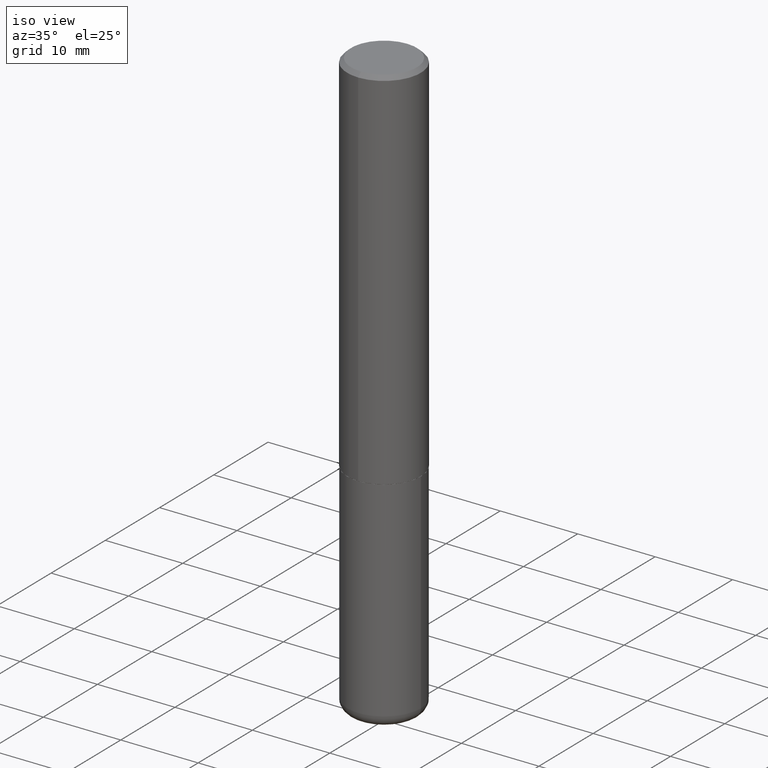
[diagram: clean part render]
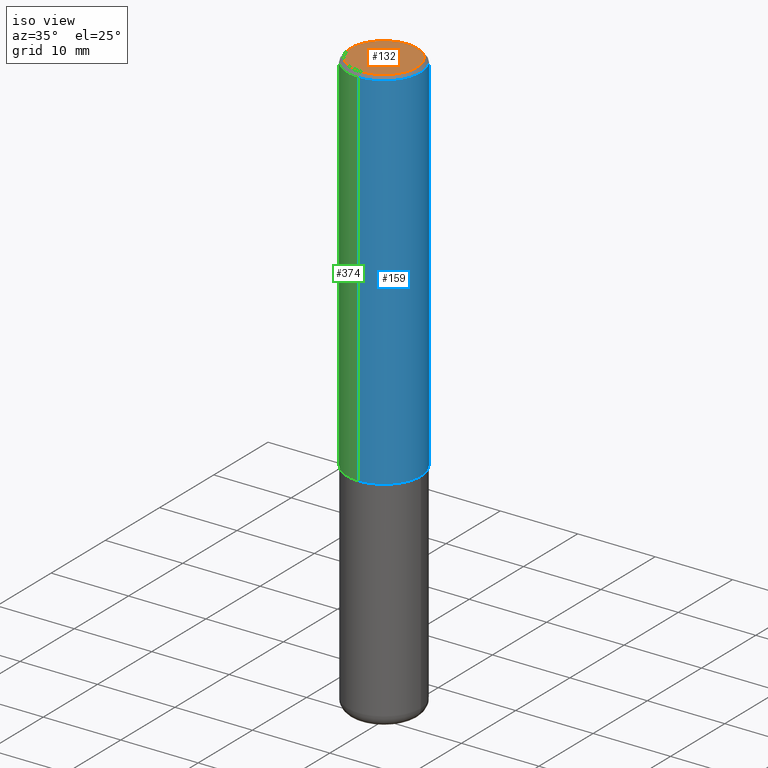
[diagram: same view with three faces highlighted in distinct colors, each labeled with its STEP entity id]
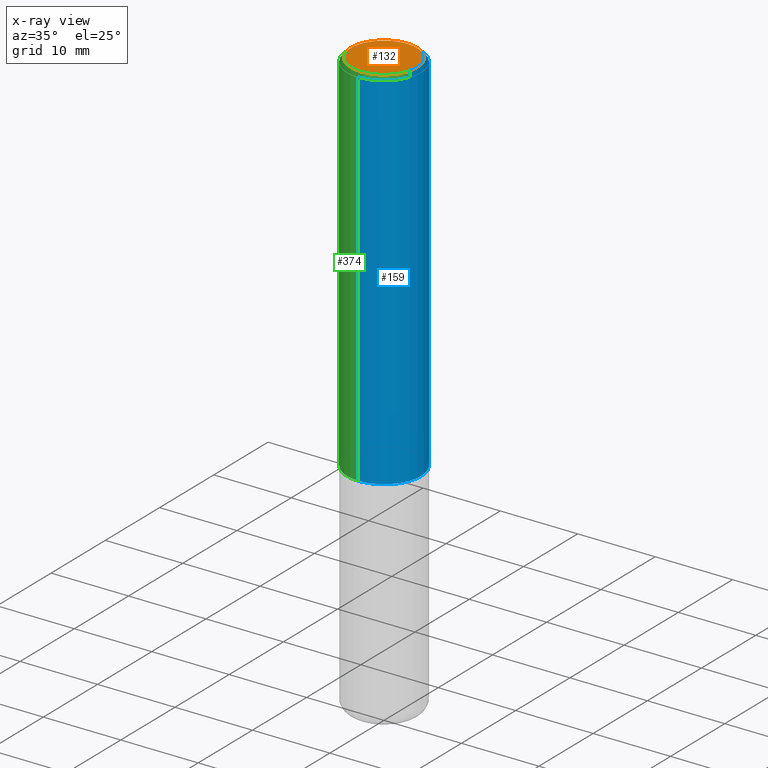
[diagram: x-ray of the same camera — body ghosted, the three highlighted faces saturated]
A machine part, iso view with three faces highlighted in distinct colors.
The next image is the same camera in x-ray (body ghosted, the three faces saturated) — at least one of them is partly hidden behind the body in this view.
Their STEP definitions:

[orange] entity #132 — the highlighted planar face has unit normal (0, -0, -1).
#16 = ORIENTED_EDGE ( 'NONE', *, *, #60, .T. ) ;
#23 = DIRECTION ( 'NONE',  ( -6.982962677686264344E-15, -1.000000000000000000, 3.491547197849207244E-15 ) ) ;
#40 = DIRECTION ( 'NONE',  ( 6.982962677686265922E-15, 1.000000000000000000, -3.491547197849208033E-15 ) ) ;
#60 = EDGE_CURVE ( 'NONE', #362, #146, #417, .T. ) ;
#63 = CARTESIAN_POINT ( 'NONE',  ( 1.774244268543582685E-45, -2.533246014083036310E-31, -7.255368094819153633E-17 ) ) ;
#75 = AXIS2_PLACEMENT_3D ( 'NONE', #221, #202, #40 ) ;
#86 = PLANE ( 'NONE',  #75 ) ;
#97 = EDGE_CURVE ( 'NONE', #146, #362, #252, .T. ) ;
#132 = ADVANCED_FACE ( 'NONE', ( #218 ), #86, .F. ) ;
#146 = VERTEX_POINT ( 'NONE', #363 ) ;
#150 = AXIS2_PLACEMENT_3D ( 'NONE', #322, #230, #291 ) ;
#173 = ORIENTED_EDGE ( 'NONE', *, *, #97, .T. ) ;
#202 = DIRECTION ( 'NONE',  ( 2.445422817087003844E-29, -3.491547197849208033E-15, -1.000000000000000000 ) ) ;
#218 = FACE_OUTER_BOUND ( 'NONE', #280, .T. ) ;
#221 = CARTESIAN_POINT ( 'NONE',  ( 1.169646248512449792E-15, 0.1675000000000000655, -6.211109961138383353E-16 ) ) ;
#230 = DIRECTION ( 'NONE',  ( -2.445422817087004124E-29, 3.491547197849208033E-15, 1.000000000000000000 ) ) ;
#252 = CIRCLE ( 'NONE', #389, 0.1675000000000000655 ) ;
#271 = CARTESIAN_POINT ( 'NONE',  ( -1.217738394604446442E-15, -0.1675000000000000655, 5.122804746915509754E-16 ) ) ;
#280 = EDGE_LOOP ( 'NONE', ( #173, #16 ) ) ;
#291 = DIRECTION ( 'NONE',  ( -6.982962677686264344E-15, -1.000000000000000000, 3.491547197849207244E-15 ) ) ;
#318 = DIRECTION ( 'NONE',  ( -2.445422817087004124E-29, 3.491547197849208033E-15, 1.000000000000000000 ) ) ;
#322 = CARTESIAN_POINT ( 'NONE',  ( 1.774244268543582685E-45, -2.533246014083036310E-31, -7.255368094819153633E-17 ) ) ;
#362 = VERTEX_POINT ( 'NONE', #271 ) ;
#363 = CARTESIAN_POINT ( 'NONE',  ( 1.239475875289312499E-15, 0.1675000000000000655, -6.573878365879339248E-16 ) ) ;
#389 = AXIS2_PLACEMENT_3D ( 'NONE', #63, #318, #23 ) ;
#417 = CIRCLE ( 'NONE', #150, 0.1675000000000000655 ) ;

[blue] entity #159 — the highlighted cylindrical surface (partial cylindrical patch) has radius 4.7625 mm, axis along (-0, 0, 1).
#2 = CARTESIAN_POINT ( 'NONE',  ( -1.286343374582161379E-15, -0.1875000000000000555, -0.01999999999999938979 ) ) ;
#11 = DIRECTION ( 'NONE',  ( -2.445422817087004124E-29, 3.491547197849208033E-15, 1.000000000000000000 ) ) ;
#18 = VERTEX_POINT ( 'NONE', #261 ) ;
#21 = VERTEX_POINT ( 'NONE', #33 ) ;
#31 = AXIS2_PLACEMENT_3D ( 'NONE', #327, #11, #69 ) ;
#33 = CARTESIAN_POINT ( 'NONE',  ( 1.332267629550211909E-15, 0.1874999999999936162, -1.874000000000000554 ) ) ;
#38 = FACE_OUTER_BOUND ( 'NONE', #314, .T. ) ;
#69 = DIRECTION ( 'NONE',  ( -6.982962677686266711E-15, -1.000000000000000000, 3.491547197849207639E-15 ) ) ;
#85 = VECTOR ( 'NONE', #138, 39.37007874015748143 ) ;
#117 = EDGE_CURVE ( 'NONE', #18, #21, #352, .T. ) ;
#131 = CARTESIAN_POINT ( 'NONE',  ( 4.890845634174019353E-31, -6.983094395698430266E-17, -0.02000000000000004205 ) ) ;
#138 = DIRECTION ( 'NONE',  ( -2.445422817087003844E-29, 3.491547197849208033E-15, 1.000000000000000000 ) ) ;
#142 = CARTESIAN_POINT ( 'NONE',  ( -1.309305502066175600E-15, -0.1875000000000000833, 6.546650995967267527E-16 ) ) ;
#148 = CARTESIAN_POINT ( 'NONE',  ( 4.582722359221045613E-29, -6.543159448769415354E-15, -1.874000000000000110 ) ) ;
#159 = ADVANCED_FACE ( 'NONE', ( #38 ), #231, .T. ) ;
#166 = AXIS2_PLACEMENT_3D ( 'NONE', #148, #193, #408 ) ;
#168 = ORIENTED_EDGE ( 'NONE', *, *, #206, .T. ) ;
#169 = EDGE_CURVE ( 'NONE', #244, #217, #413, .T. ) ;
#181 = ORIENTED_EDGE ( 'NONE', *, *, #169, .F. ) ;
#185 = ORIENTED_EDGE ( 'NONE', *, *, #380, .F. ) ;
#193 = DIRECTION ( 'NONE',  ( -2.445422817087004124E-29, 3.491547197849208033E-15, 1.000000000000000000 ) ) ;
#199 = DIRECTION ( 'NONE',  ( -2.445422817087003844E-29, 3.491547197849208033E-15, 1.000000000000000000 ) ) ;
#206 = EDGE_CURVE ( 'NONE', #21, #217, #387, .T. ) ;
#217 = VERTEX_POINT ( 'NONE', #239 ) ;
#231 = CYLINDRICAL_SURFACE ( 'NONE', #31, 0.1875000000000000833 ) ;
#239 = CARTESIAN_POINT ( 'NONE',  ( 1.309305502066175205E-15, 0.1874999999999999167, -0.02000000000000069431 ) ) ;
#244 = VERTEX_POINT ( 'NONE', #2 ) ;
#261 = CARTESIAN_POINT ( 'NONE',  ( -1.309305502066130438E-15, -0.1875000000000067446, -1.873999999999999444 ) ) ;
#263 = CARTESIAN_POINT ( 'NONE',  ( 1.332267629550188243E-15, 0.1875000000000000833, -6.546650995967267527E-16 ) ) ;
#303 = ORIENTED_EDGE ( 'NONE', *, *, #117, .T. ) ;
#307 = LINE ( 'NONE', #142, #85 ) ;
#314 = EDGE_LOOP ( 'NONE', ( #303, #168, #181, #185 ) ) ;
#319 = AXIS2_PLACEMENT_3D ( 'NONE', #131, #392, #328 ) ;
#327 = CARTESIAN_POINT ( 'NONE',  ( 0.000000000000000000, 0.000000000000000000, 0.000000000000000000 ) ) ;
#328 = DIRECTION ( 'NONE',  ( -6.982962677686266711E-15, -1.000000000000000000, 3.483106191921935949E-15 ) ) ;
#352 = CIRCLE ( 'NONE', #166, 0.1875000000000001943 ) ;
#356 = VECTOR ( 'NONE', #199, 39.37007874015748143 ) ;
#380 = EDGE_CURVE ( 'NONE', #18, #244, #307, .T. ) ;
#387 = LINE ( 'NONE', #263, #356 ) ;
#392 = DIRECTION ( 'NONE',  ( -2.445422817087004124E-29, 3.491547197849208033E-15, 1.000000000000000000 ) ) ;
#408 = DIRECTION ( 'NONE',  ( -6.982962677686265922E-15, -1.000000000000000000, 2.913971193241877611E-15 ) ) ;
#413 = CIRCLE ( 'NONE', #319, 0.1874999999999999722 ) ;

[green] entity #374 — the highlighted cylindrical surface (partial cylindrical patch) has radius 4.7625 mm, axis along (-0, 0, 1).
#2 = CARTESIAN_POINT ( 'NONE',  ( -1.286343374582161379E-15, -0.1875000000000000555, -0.01999999999999938979 ) ) ;
#18 = VERTEX_POINT ( 'NONE', #261 ) ;
#19 = CARTESIAN_POINT ( 'NONE',  ( 4.582722359221045613E-29, -6.543159448769415354E-15, -1.874000000000000110 ) ) ;
#21 = VERTEX_POINT ( 'NONE', #33 ) ;
#25 = EDGE_CURVE ( 'NONE', #217, #244, #216, .T. ) ;
#33 = CARTESIAN_POINT ( 'NONE',  ( 1.332267629550211909E-15, 0.1874999999999936162, -1.874000000000000554 ) ) ;
#34 = AXIS2_PLACEMENT_3D ( 'NONE', #190, #155, #415 ) ;
#46 = ORIENTED_EDGE ( 'NONE', *, *, #380, .T. ) ;
#49 = CYLINDRICAL_SURFACE ( 'NONE', #386, 0.1875000000000000833 ) ;
#51 = DIRECTION ( 'NONE',  ( -2.445422817087004124E-29, 3.491547197849208033E-15, 1.000000000000000000 ) ) ;
#85 = VECTOR ( 'NONE', #138, 39.37007874015748143 ) ;
#95 = AXIS2_PLACEMENT_3D ( 'NONE', #19, #51, #211 ) ;
#105 = DIRECTION ( 'NONE',  ( -6.982962677686266711E-15, -1.000000000000000000, 3.491547197849207639E-15 ) ) ;
#116 = ORIENTED_EDGE ( 'NONE', *, *, #338, .T. ) ;
#138 = DIRECTION ( 'NONE',  ( -2.445422817087003844E-29, 3.491547197849208033E-15, 1.000000000000000000 ) ) ;
#139 = EDGE_LOOP ( 'NONE', ( #337, #116, #46, #403 ) ) ;
#142 = CARTESIAN_POINT ( 'NONE',  ( -1.309305502066175600E-15, -0.1875000000000000833, 6.546650995967267527E-16 ) ) ;
#155 = DIRECTION ( 'NONE',  ( -2.445422817087004124E-29, 3.491547197849208033E-15, 1.000000000000000000 ) ) ;
#178 = CARTESIAN_POINT ( 'NONE',  ( 0.000000000000000000, 0.000000000000000000, 0.000000000000000000 ) ) ;
#190 = CARTESIAN_POINT ( 'NONE',  ( 4.890845634174019353E-31, -6.983094395698430266E-17, -0.02000000000000004205 ) ) ;
#199 = DIRECTION ( 'NONE',  ( -2.445422817087003844E-29, 3.491547197849208033E-15, 1.000000000000000000 ) ) ;
#206 = EDGE_CURVE ( 'NONE', #21, #217, #387, .T. ) ;
#211 = DIRECTION ( 'NONE',  ( -6.982962677686265922E-15, -1.000000000000000000, 2.913971193241877611E-15 ) ) ;
#216 = CIRCLE ( 'NONE', #34, 0.1874999999999999722 ) ;
#217 = VERTEX_POINT ( 'NONE', #239 ) ;
#229 = CIRCLE ( 'NONE', #95, 0.1875000000000001943 ) ;
#239 = CARTESIAN_POINT ( 'NONE',  ( 1.309305502066175205E-15, 0.1874999999999999167, -0.02000000000000069431 ) ) ;
#244 = VERTEX_POINT ( 'NONE', #2 ) ;
#261 = CARTESIAN_POINT ( 'NONE',  ( -1.309305502066130438E-15, -0.1875000000000067446, -1.873999999999999444 ) ) ;
#263 = CARTESIAN_POINT ( 'NONE',  ( 1.332267629550188243E-15, 0.1875000000000000833, -6.546650995967267527E-16 ) ) ;
#307 = LINE ( 'NONE', #142, #85 ) ;
#313 = DIRECTION ( 'NONE',  ( -2.445422817087004124E-29, 3.491547197849208033E-15, 1.000000000000000000 ) ) ;
#337 = ORIENTED_EDGE ( 'NONE', *, *, #206, .F. ) ;
#338 = EDGE_CURVE ( 'NONE', #21, #18, #229, .T. ) ;
#340 = FACE_OUTER_BOUND ( 'NONE', #139, .T. ) ;
#356 = VECTOR ( 'NONE', #199, 39.37007874015748143 ) ;
#374 = ADVANCED_FACE ( 'NONE', ( #340 ), #49, .T. ) ;
#380 = EDGE_CURVE ( 'NONE', #18, #244, #307, .T. ) ;
#386 = AXIS2_PLACEMENT_3D ( 'NONE', #178, #313, #105 ) ;
#387 = LINE ( 'NONE', #263, #356 ) ;
#403 = ORIENTED_EDGE ( 'NONE', *, *, #25, .F. ) ;
#415 = DIRECTION ( 'NONE',  ( -6.982962677686266711E-15, -1.000000000000000000, 3.483106191921935949E-15 ) ) ;